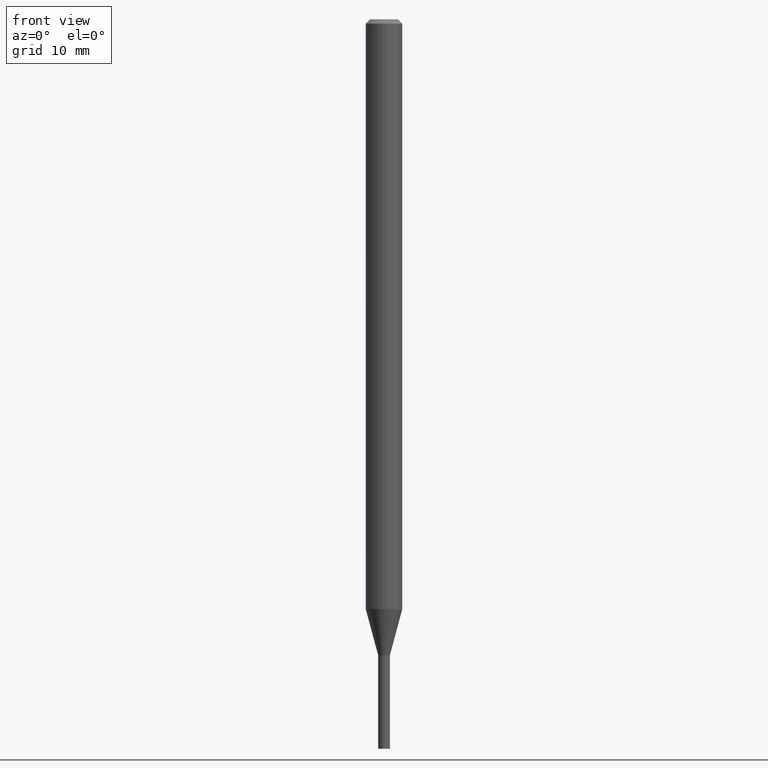
[diagram: clean part render]
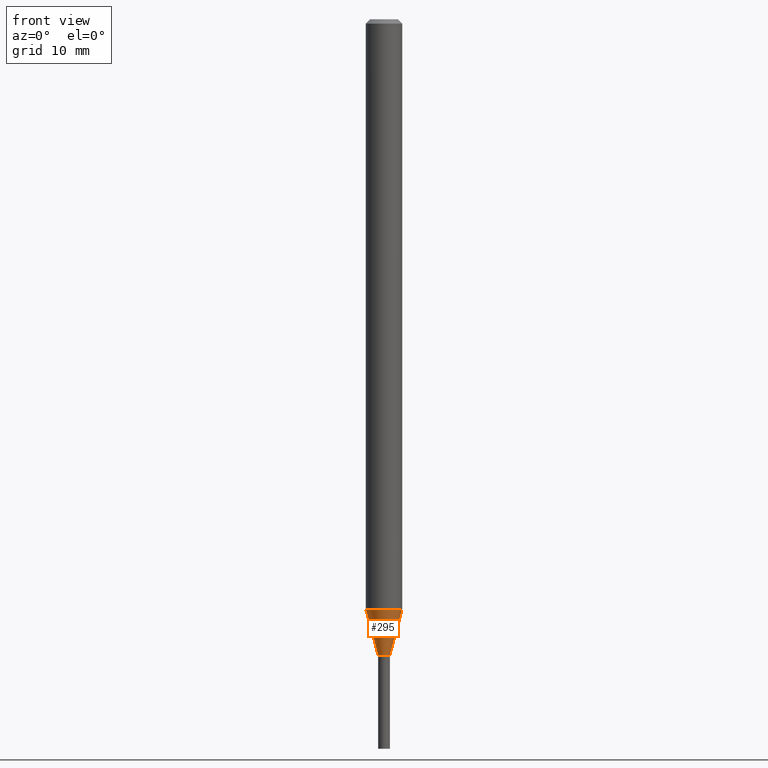
[diagram: same view with one face highlighted and labeled with its STEP entity id]
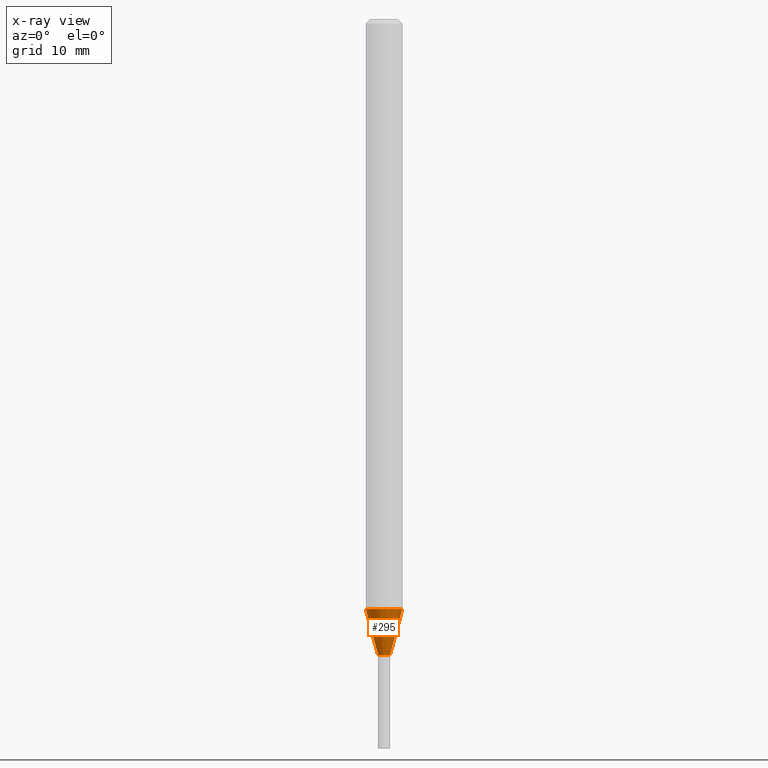
[diagram: x-ray of the same camera — body ghosted, the highlighted face saturated]
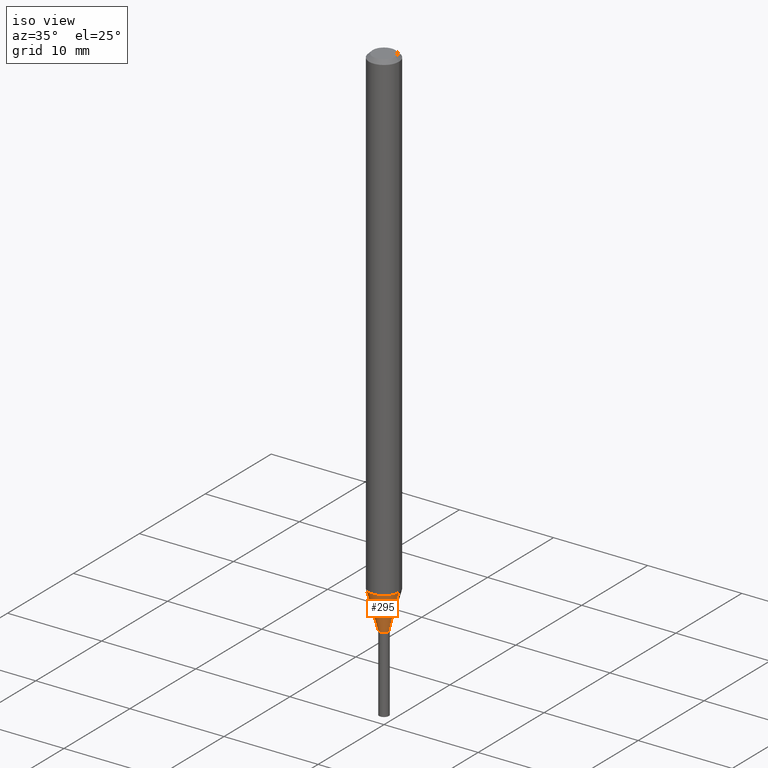
[diagram: same view with one face highlighted and labeled with its STEP entity id]
A machine part, front view. The second image highlights one B-rep face of the part: STEP entity #295.
The next image is the same camera in x-ray: the body ghosted, the highlighted face saturated — about 0% of this face is hidden behind the body in this view.
A second angle (iso view) of the same face is appended — the face is thin or edge-on in the first view.
In plain terms, the highlighted conical surface has half-angle 15 deg.
Its self-contained STEP definition (entity closure, byte-faithful):
#9 = VERTEX_POINT ( 'NONE', #421 ) ;
#18 = ORIENTED_EDGE ( 'NONE', *, *, #84, .F. ) ;
#21 = CARTESIAN_POINT ( 'NONE',  ( 4.943240909580767453E-29, -7.057637924292802386E-15, -2.021387840678321890 ) ) ;
#35 = DIRECTION ( 'NONE',  ( 1.000000000000000000, -6.982962677686261189E-15, 0.000000000000000000 ) ) ;
#37 = CARTESIAN_POINT ( 'NONE',  ( 0.01999999999999965000, -7.751088572231780346E-15, -2.180000000000000160 ) ) ;
#40 = DIRECTION ( 'NONE',  ( -2.445468806185136597E-29, 3.491481338843145583E-15, 1.000000000000000000 ) ) ;
#49 = AXIS2_PLACEMENT_3D ( 'NONE', #151, #40, #364 ) ;
#58 = CARTESIAN_POINT ( 'NONE',  ( 0.06249999999999999306, -7.494073091648195633E-15, -2.021387840678321890 ) ) ;
#84 = EDGE_CURVE ( 'NONE', #9, #453, #156, .T. ) ;
#113 = ORIENTED_EDGE ( 'NONE', *, *, #162, .F. ) ;
#151 = CARTESIAN_POINT ( 'NONE',  ( 5.331121997483598767E-29, -7.611429318678058482E-15, -2.180000000000000160 ) ) ;
#152 = VERTEX_POINT ( 'NONE', #58 ) ;
#156 = LINE ( 'NONE', #280, #259 ) ;
#161 = DIRECTION ( 'NONE',  ( -2.445468806185136597E-29, 3.491481338843145583E-15, 1.000000000000000000 ) ) ;
#162 = EDGE_CURVE ( 'NONE', #453, #152, #222, .T. ) ;
#180 = VERTEX_POINT ( 'NONE', #37 ) ;
#184 = AXIS2_PLACEMENT_3D ( 'NONE', #21, #161, #455 ) ;
#186 = CARTESIAN_POINT ( 'NONE',  ( -0.06249999999999999306, -6.613548714442740559E-15, -2.021387840678321890 ) ) ;
#212 = DIRECTION ( 'NONE',  ( -2.445468806185136597E-29, 3.491481338843145583E-15, 1.000000000000000000 ) ) ;
#222 = CIRCLE ( 'NONE', #184, 0.06250000000000000000 ) ;
#234 = ORIENTED_EDGE ( 'NONE', *, *, #336, .T. ) ;
#259 = VECTOR ( 'NONE', #265, 39.37007874015747433 ) ;
#265 = DIRECTION ( 'NONE',  ( -0.2588190451025214611, 5.211531920934551042E-15, 0.9659258262890682012 ) ) ;
#280 = CARTESIAN_POINT ( 'NONE',  ( -0.01999999999999965000, -7.469320771526039897E-15, -2.180000000000000160 ) ) ;
#295 = ADVANCED_FACE ( 'NONE', ( #426 ), #347, .T. ) ;
#296 = CARTESIAN_POINT ( 'NONE',  ( 0.01999999999999965000, -7.751088572231780346E-15, -2.180000000000000160 ) ) ;
#316 = AXIS2_PLACEMENT_3D ( 'NONE', #395, #212, #35 ) ;
#334 = VECTOR ( 'NONE', #407, 39.37007874015747433 ) ;
#335 = ORIENTED_EDGE ( 'NONE', *, *, #384, .T. ) ;
#336 = EDGE_CURVE ( 'NONE', #9, #180, #460, .T. ) ;
#347 = CONICAL_SURFACE ( 'NONE', #316, 0.01999999999999965000, 0.2617993877991501295 ) ;
#364 = DIRECTION ( 'NONE',  ( 1.000000000000000000, -6.982962677686261189E-15, 0.000000000000000000 ) ) ;
#384 = EDGE_CURVE ( 'NONE', #180, #152, #438, .T. ) ;
#395 = CARTESIAN_POINT ( 'NONE',  ( 5.331121997483598767E-29, -7.611429318678058482E-15, -2.180000000000000160 ) ) ;
#407 = DIRECTION ( 'NONE',  ( 0.2588190451025214611, 1.565188264969621573E-15, 0.9659258262890682012 ) ) ;
#421 = CARTESIAN_POINT ( 'NONE',  ( -0.01999999999999965000, -7.041434742984390622E-15, -2.180000000000000160 ) ) ;
#426 = FACE_OUTER_BOUND ( 'NONE', #448, .T. ) ;
#438 = LINE ( 'NONE', #296, #334 ) ;
#448 = EDGE_LOOP ( 'NONE', ( #18, #234, #335, #113 ) ) ;
#453 = VERTEX_POINT ( 'NONE', #186 ) ;
#455 = DIRECTION ( 'NONE',  ( 1.000000000000000000, -6.982962677686262766E-15, 0.000000000000000000 ) ) ;
#460 = CIRCLE ( 'NONE', #49, 0.01999999999999965000 ) ;